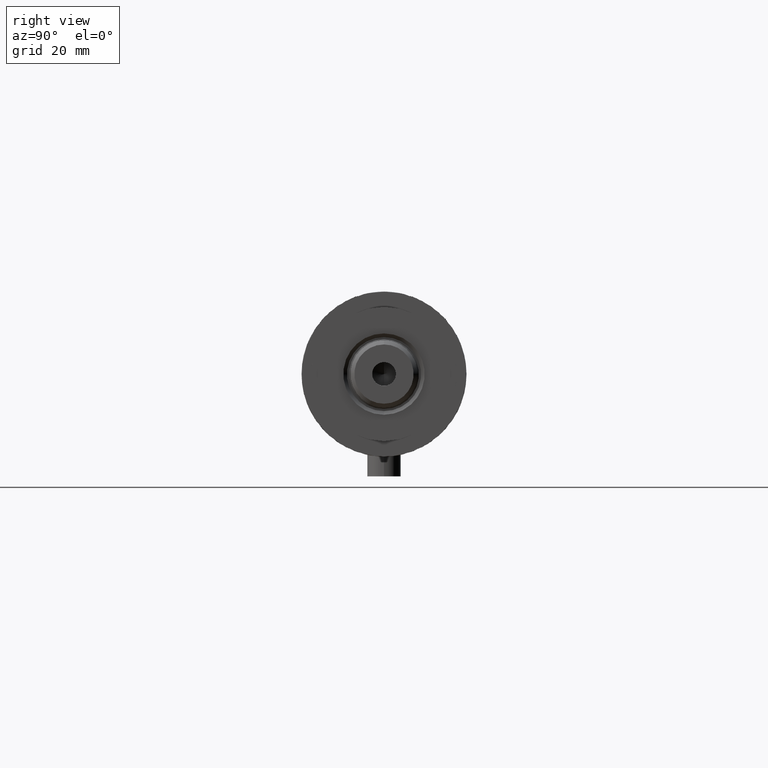
[diagram: clean part render]
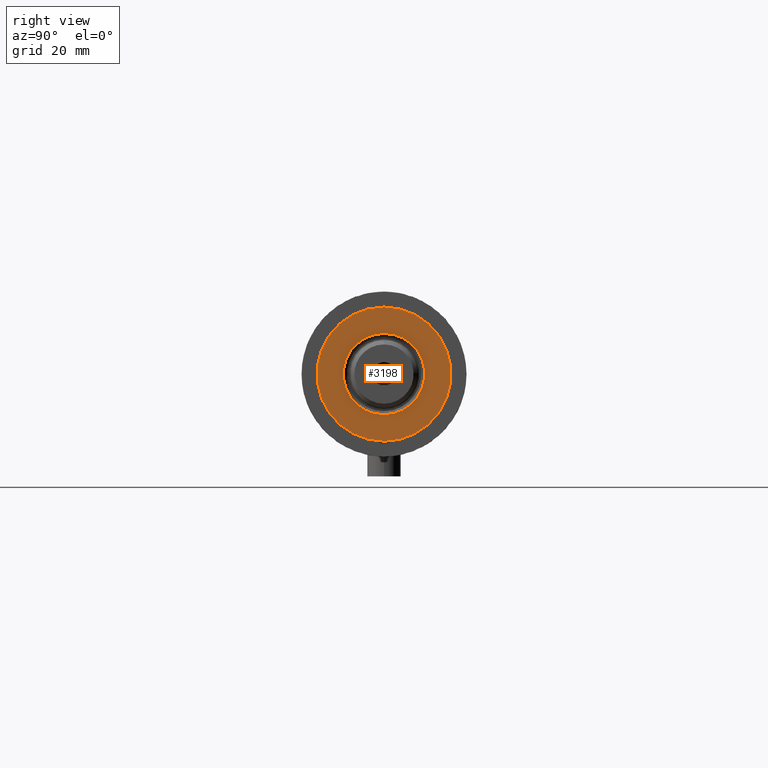
[diagram: same view with one face highlighted and labeled with its STEP entity id]
A machine part, right view. The second image highlights one B-rep face of the part: STEP entity #3198.
In plain terms, the highlighted planar face has unit normal (1, 0, -0).
Its self-contained STEP definition (entity closure, byte-faithful):
#48 = AXIS2_PLACEMENT_3D ( 'NONE', #4347, #3330, #2286 ) ;
#88 = CARTESIAN_POINT ( 'NONE',  ( 0.000000000000000000, 0.000000000000000000, 41.00000000000000000 ) ) ;
#221 = DIRECTION ( 'NONE',  ( 1.000000000000000000, 0.000000000000000000, 0.000000000000000000 ) ) ;
#236 = EDGE_LOOP ( 'NONE', ( #787, #3677 ) ) ;
#259 = FACE_BOUND ( 'NONE', #236, .T. ) ;
#321 = EDGE_CURVE ( 'NONE', #2433, #1150, #3432, .T. ) ;
#447 = EDGE_CURVE ( 'NONE', #992, #1453, #1495, .T. ) ;
#787 = ORIENTED_EDGE ( 'NONE', *, *, #891, .T. ) ;
#891 = EDGE_CURVE ( 'NONE', #1150, #2433, #1344, .T. ) ;
#992 = VERTEX_POINT ( 'NONE', #2160 ) ;
#1120 = DIRECTION ( 'NONE',  ( 1.000000000000000000, 0.000000000000000000, 0.000000000000000000 ) ) ;
#1145 = ORIENTED_EDGE ( 'NONE', *, *, #3316, .T. ) ;
#1150 = VERTEX_POINT ( 'NONE', #4007 ) ;
#1258 = EDGE_LOOP ( 'NONE', ( #2946, #1145 ) ) ;
#1344 = CIRCLE ( 'NONE', #2427, 14.54999999999997939 ) ;
#1453 = VERTEX_POINT ( 'NONE', #2882 ) ;
#1462 = DIRECTION ( 'NONE',  ( -0.000000000000000000, -0.000000000000000000, -1.000000000000000000 ) ) ;
#1495 = CIRCLE ( 'NONE', #2059, 24.00000000000000355 ) ;
#1632 = PLANE ( 'NONE',  #2609 ) ;
#1654 = DIRECTION ( 'NONE',  ( 0.000000000000000000, 0.000000000000000000, 1.000000000000000000 ) ) ;
#1924 = CARTESIAN_POINT ( 'NONE',  ( 0.000000000000000000, 0.000000000000000000, 41.00000000000000000 ) ) ;
#2059 = AXIS2_PLACEMENT_3D ( 'NONE', #3011, #1654, #4387 ) ;
#2160 = CARTESIAN_POINT ( 'NONE',  ( -24.00000000000000355, 0.000000000000000000, 41.00000000000000000 ) ) ;
#2286 = DIRECTION ( 'NONE',  ( 1.000000000000000000, 0.000000000000000000, 0.000000000000000000 ) ) ;
#2427 = AXIS2_PLACEMENT_3D ( 'NONE', #88, #1462, #1120 ) ;
#2433 = VERTEX_POINT ( 'NONE', #2636 ) ;
#2539 = CARTESIAN_POINT ( 'NONE',  ( 0.000000000000000000, 0.000000000000000000, 41.00000000000000000 ) ) ;
#2609 = AXIS2_PLACEMENT_3D ( 'NONE', #2539, #4350, #2868 ) ;
#2636 = CARTESIAN_POINT ( 'NONE',  ( -14.54999999999997939, 1.781861092759396721E-15, 41.00000000000000000 ) ) ;
#2868 = DIRECTION ( 'NONE',  ( 1.000000000000000000, 0.000000000000000000, -0.000000000000000000 ) ) ;
#2882 = CARTESIAN_POINT ( 'NONE',  ( 24.00000000000000355, 2.939152317953648289E-15, 41.00000000000000000 ) ) ;
#2946 = ORIENTED_EDGE ( 'NONE', *, *, #447, .T. ) ;
#3011 = CARTESIAN_POINT ( 'NONE',  ( 0.000000000000000000, 0.000000000000000000, 41.00000000000000000 ) ) ;
#3198 = ADVANCED_FACE ( 'NONE', ( #259, #3229 ), #1632, .T. ) ;
#3229 = FACE_OUTER_BOUND ( 'NONE', #1258, .T. ) ;
#3309 = DIRECTION ( 'NONE',  ( 0.000000000000000000, 0.000000000000000000, 1.000000000000000000 ) ) ;
#3316 = EDGE_CURVE ( 'NONE', #1453, #992, #3966, .T. ) ;
#3330 = DIRECTION ( 'NONE',  ( -0.000000000000000000, -0.000000000000000000, -1.000000000000000000 ) ) ;
#3432 = CIRCLE ( 'NONE', #48, 14.54999999999997939 ) ;
#3677 = ORIENTED_EDGE ( 'NONE', *, *, #321, .T. ) ;
#3966 = CIRCLE ( 'NONE', #4258, 24.00000000000000355 ) ;
#4007 = CARTESIAN_POINT ( 'NONE',  ( 14.54999999999997939, 0.000000000000000000, 41.00000000000000000 ) ) ;
#4258 = AXIS2_PLACEMENT_3D ( 'NONE', #1924, #3309, #221 ) ;
#4347 = CARTESIAN_POINT ( 'NONE',  ( 0.000000000000000000, 0.000000000000000000, 41.00000000000000000 ) ) ;
#4350 = DIRECTION ( 'NONE',  ( 0.000000000000000000, 0.000000000000000000, 1.000000000000000000 ) ) ;
#4387 = DIRECTION ( 'NONE',  ( 1.000000000000000000, 0.000000000000000000, 0.000000000000000000 ) ) ;